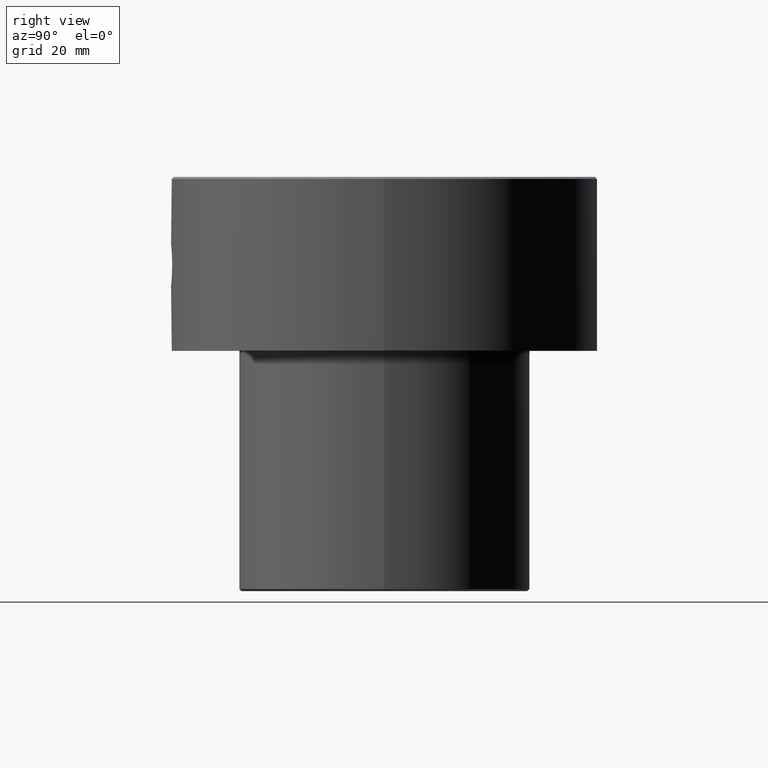
[diagram: clean part render]
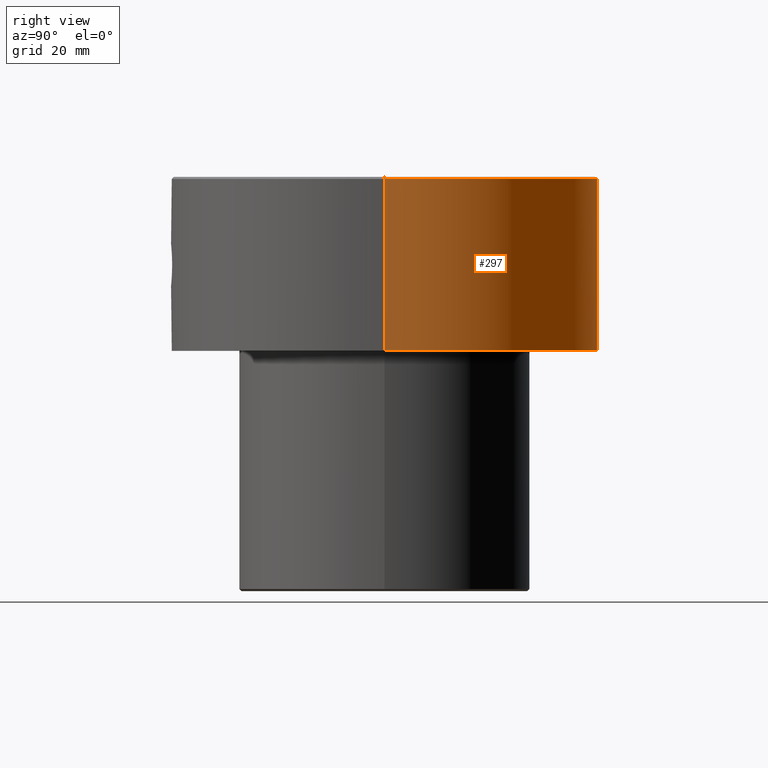
[diagram: same view with one face highlighted and labeled with its STEP entity id]
A machine part, right view. The second image highlights one B-rep face of the part: STEP entity #297.
In plain terms, the highlighted cylindrical surface (partial cylindrical patch) has radius 51.5 mm, axis along (-0, -0, 1).
Its self-contained STEP definition (entity closure, byte-faithful):
#11 = AXIS2_PLACEMENT_3D ( 'NONE', #390, #1253, #864 ) ;
#12 = VECTOR ( 'NONE', #658, 1000.000000000000000 ) ;
#20 = CARTESIAN_POINT ( 'NONE',  ( 51.50000000000000000, 0.000000000000000000, -0.5000000000000004441 ) ) ;
#23 = CARTESIAN_POINT ( 'NONE',  ( 51.50000000000000000, 0.000000000000000000, -42.00000000000000000 ) ) ;
#93 = ORIENTED_EDGE ( 'NONE', *, *, #990, .T. ) ;
#121 = CARTESIAN_POINT ( 'NONE',  ( -51.50000000000000000, 6.306931015608868807E-15, -42.00000000000000000 ) ) ;
#131 = DIRECTION ( 'NONE',  ( -0.000000000000000000, -0.000000000000000000, 1.000000000000000000 ) ) ;
#171 = VERTEX_POINT ( 'NONE', #121 ) ;
#192 = FACE_OUTER_BOUND ( 'NONE', #681, .T. ) ;
#231 = VERTEX_POINT ( 'NONE', #351 ) ;
#235 = ORIENTED_EDGE ( 'NONE', *, *, #555, .T. ) ;
#261 = LINE ( 'NONE', #1060, #12 ) ;
#297 = ADVANCED_FACE ( 'NONE', ( #192 ), #768, .T. ) ;
#322 = CARTESIAN_POINT ( 'NONE',  ( 0.000000000000000000, 0.000000000000000000, -0.5000000000000004441 ) ) ;
#351 = CARTESIAN_POINT ( 'NONE',  ( -51.50000000000000000, 6.306931015608868807E-15, -0.5000000000000004441 ) ) ;
#390 = CARTESIAN_POINT ( 'NONE',  ( 0.000000000000000000, 0.000000000000000000, 0.000000000000000000 ) ) ;
#532 = VERTEX_POINT ( 'NONE', #20 ) ;
#555 = EDGE_CURVE ( 'NONE', #763, #171, #568, .T. ) ;
#568 = CIRCLE ( 'NONE', #697, 51.50000000000000000 ) ;
#570 = AXIS2_PLACEMENT_3D ( 'NONE', #322, #690, #889 ) ;
#636 = EDGE_CURVE ( 'NONE', #171, #231, #1191, .T. ) ;
#645 = ORIENTED_EDGE ( 'NONE', *, *, #636, .T. ) ;
#658 = DIRECTION ( 'NONE',  ( -0.000000000000000000, -0.000000000000000000, 1.000000000000000000 ) ) ;
#681 = EDGE_LOOP ( 'NONE', ( #235, #645, #93, #1062 ) ) ;
#690 = DIRECTION ( 'NONE',  ( 0.000000000000000000, 0.000000000000000000, -1.000000000000000000 ) ) ;
#697 = AXIS2_PLACEMENT_3D ( 'NONE', #897, #131, #1104 ) ;
#763 = VERTEX_POINT ( 'NONE', #23 ) ;
#768 = CYLINDRICAL_SURFACE ( 'NONE', #11, 51.50000000000000000 ) ;
#796 = CARTESIAN_POINT ( 'NONE',  ( -51.50000000000000000, 6.306931015608868807E-15, 0.000000000000000000 ) ) ;
#864 = DIRECTION ( 'NONE',  ( 1.000000000000000000, 0.000000000000000000, 0.000000000000000000 ) ) ;
#889 = DIRECTION ( 'NONE',  ( 1.000000000000000000, 0.000000000000000000, 0.000000000000000000 ) ) ;
#897 = CARTESIAN_POINT ( 'NONE',  ( 0.000000000000000000, 0.000000000000000000, -42.00000000000000000 ) ) ;
#920 = EDGE_CURVE ( 'NONE', #763, #532, #261, .T. ) ;
#959 = CIRCLE ( 'NONE', #570, 51.50000000000000000 ) ;
#990 = EDGE_CURVE ( 'NONE', #231, #532, #959, .T. ) ;
#1023 = VECTOR ( 'NONE', #1089, 1000.000000000000000 ) ;
#1060 = CARTESIAN_POINT ( 'NONE',  ( 51.50000000000000000, 0.000000000000000000, 0.000000000000000000 ) ) ;
#1062 = ORIENTED_EDGE ( 'NONE', *, *, #920, .F. ) ;
#1089 = DIRECTION ( 'NONE',  ( -0.000000000000000000, -0.000000000000000000, 1.000000000000000000 ) ) ;
#1104 = DIRECTION ( 'NONE',  ( 1.000000000000000000, 0.000000000000000000, 0.000000000000000000 ) ) ;
#1191 = LINE ( 'NONE', #796, #1023 ) ;
#1253 = DIRECTION ( 'NONE',  ( -0.000000000000000000, -0.000000000000000000, 1.000000000000000000 ) ) ;